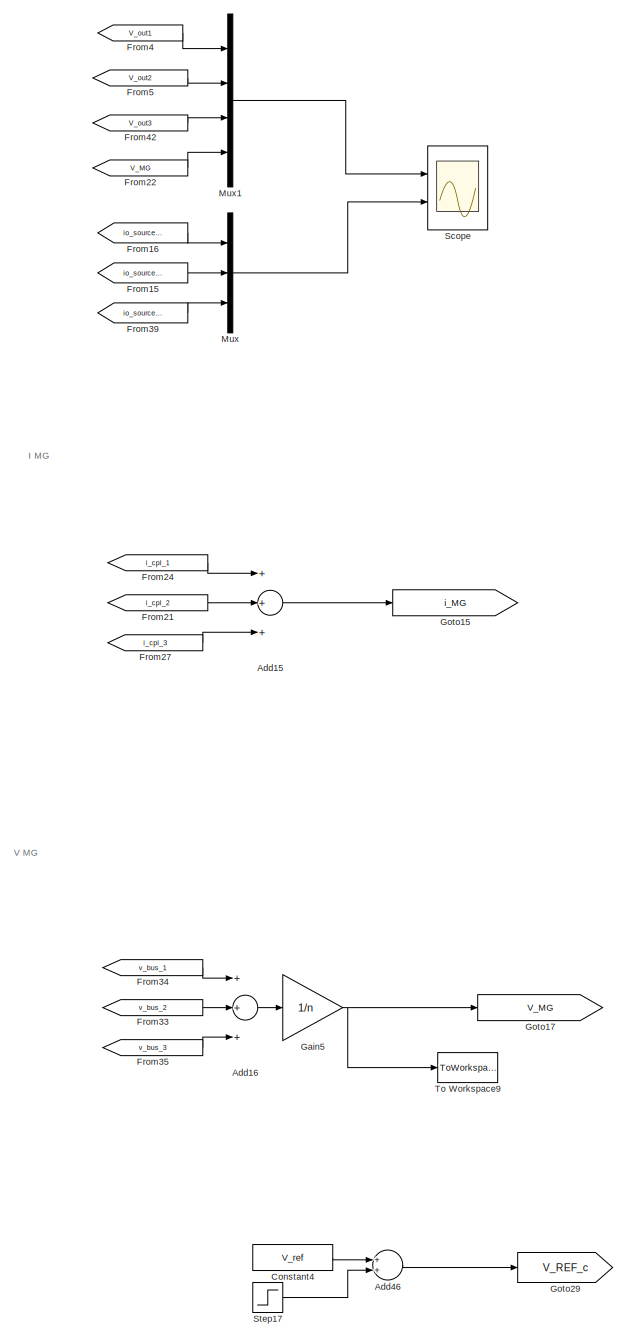
[diagram: root canvas - part 1/14, top right region]
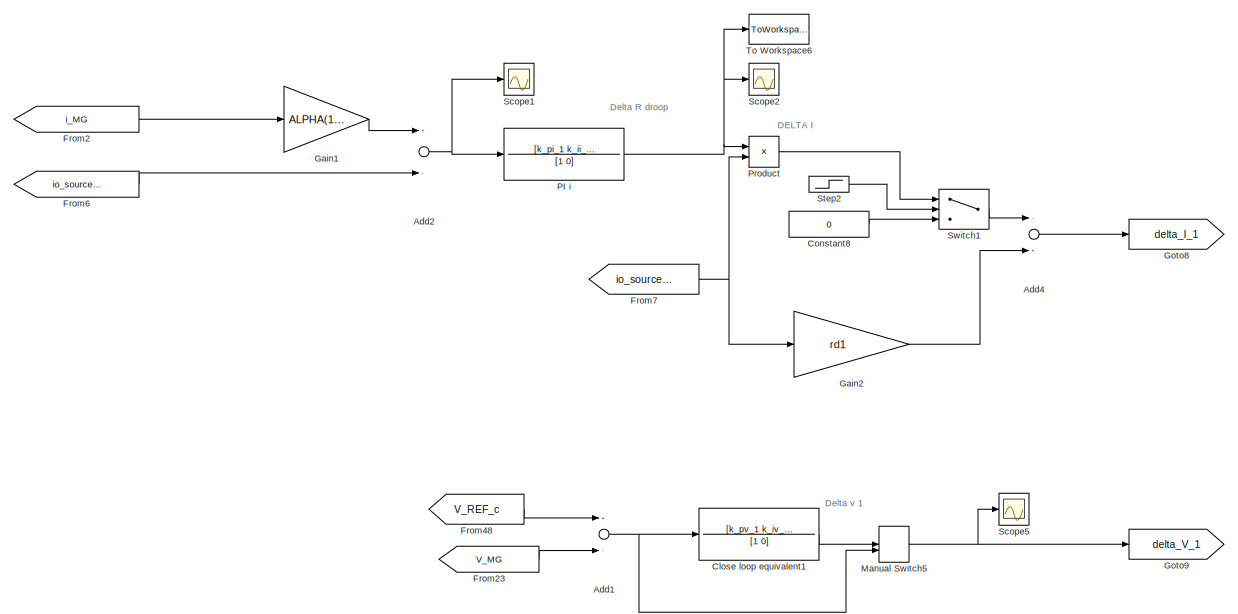
[diagram: root canvas - part 2/14, top left region]
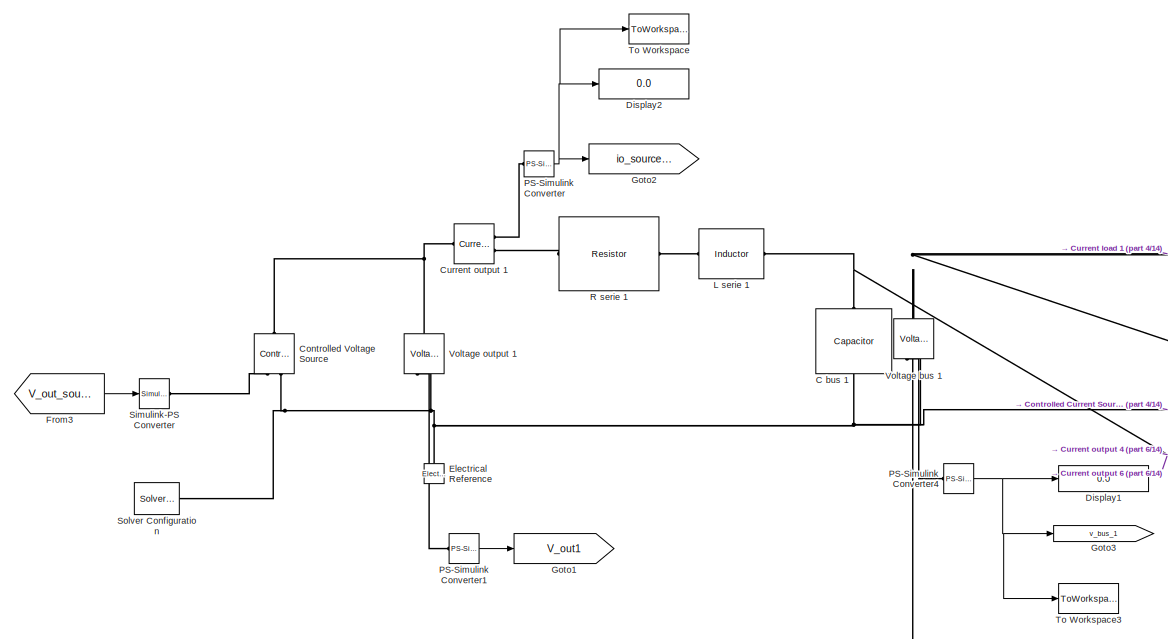
[diagram: root canvas - part 3/14, top center region]
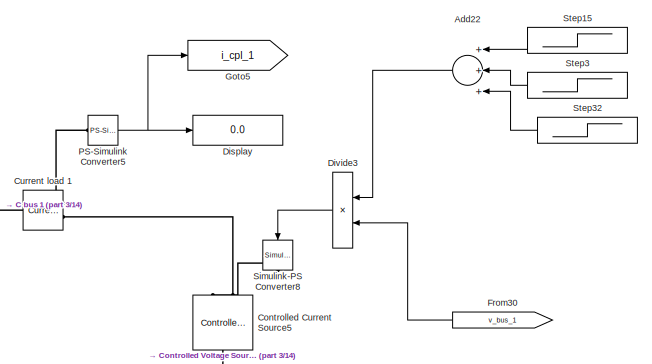
[diagram: root canvas - part 4/14, top right region]
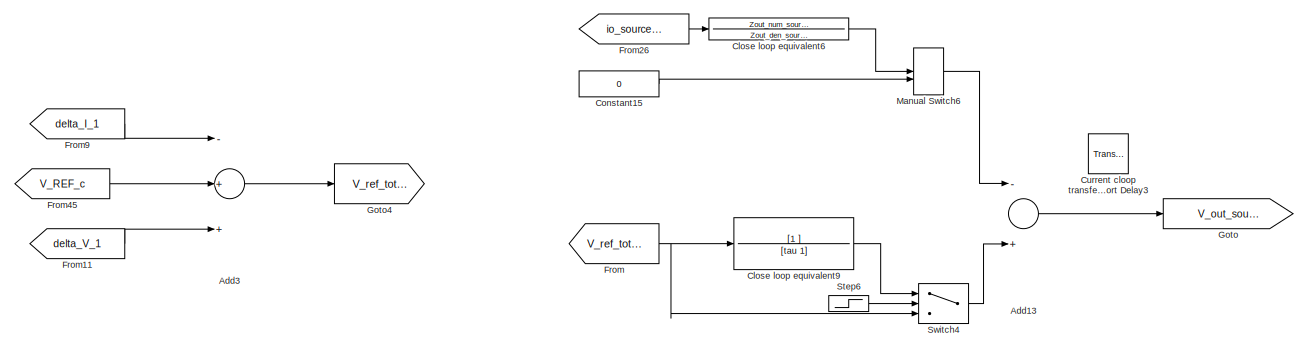
[diagram: root canvas - part 5/14, top center region]
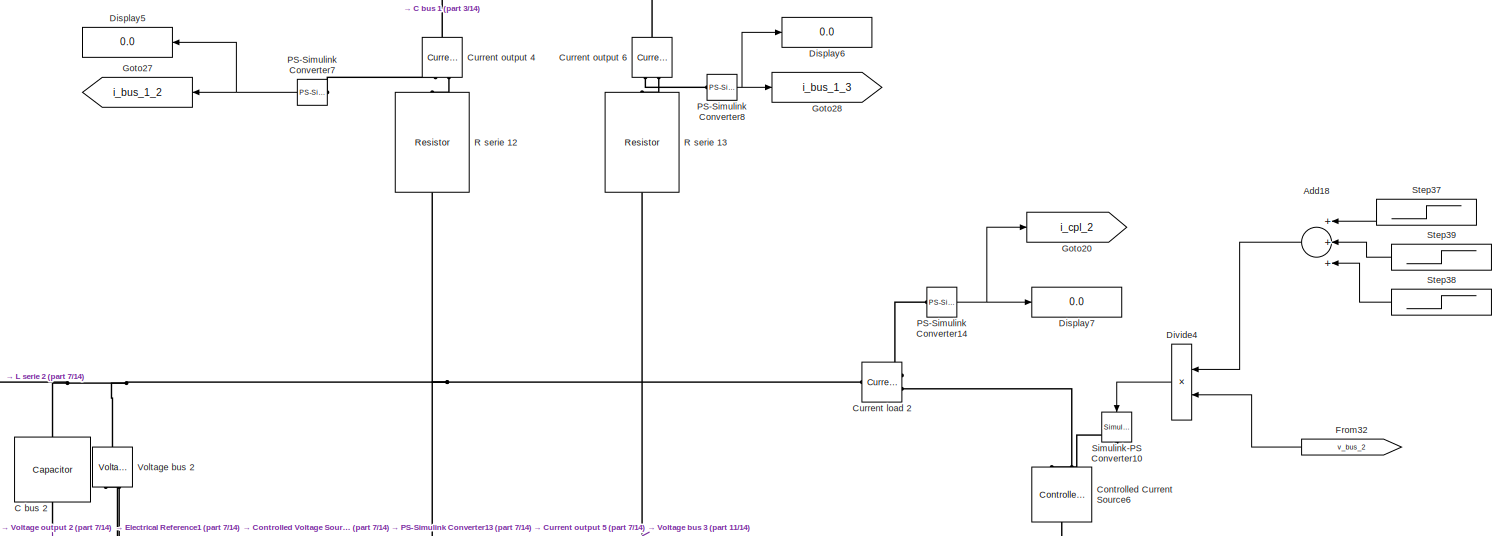
[diagram: root canvas - part 6/14, middle right region]
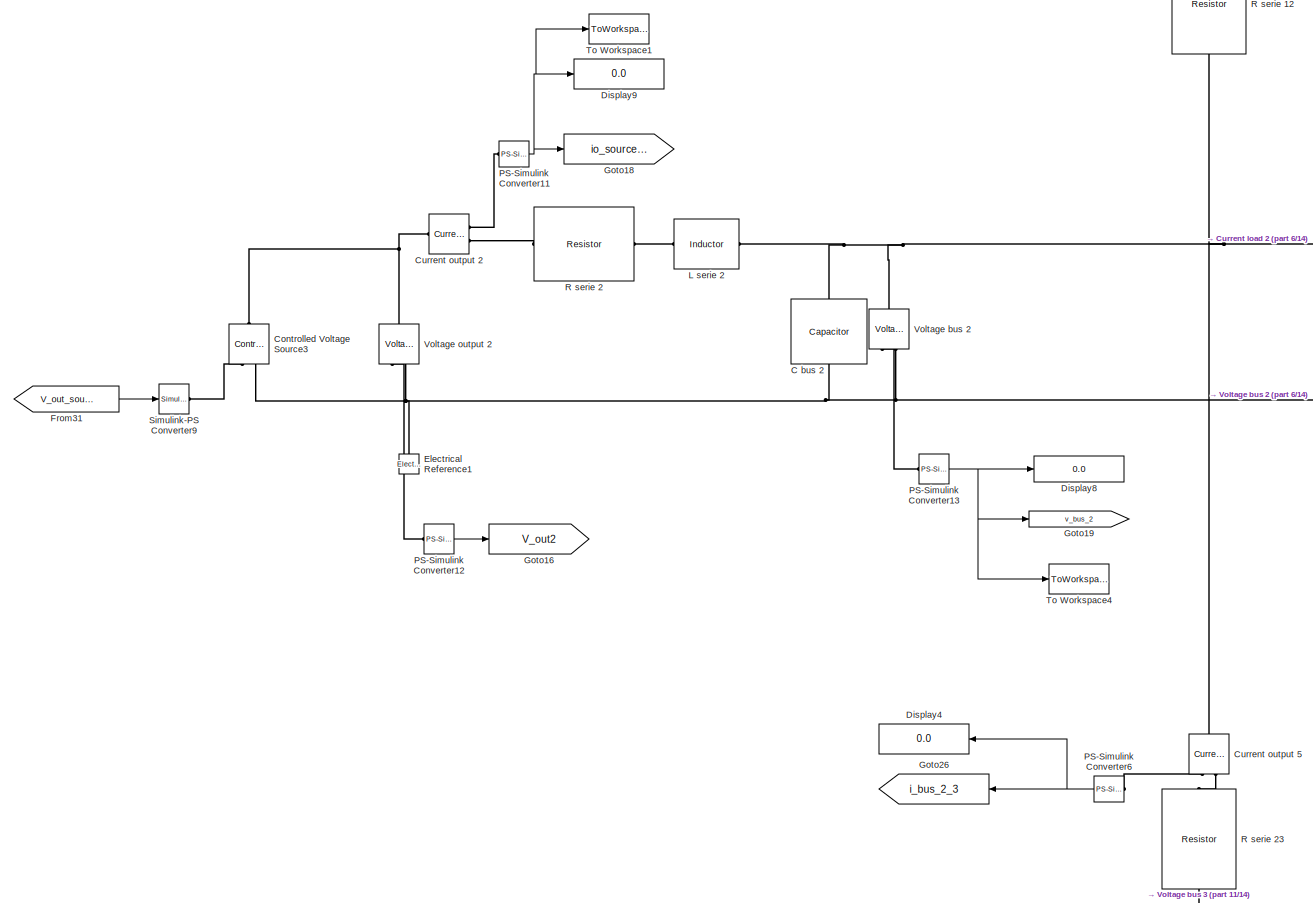
[diagram: root canvas - part 7/14, central region]
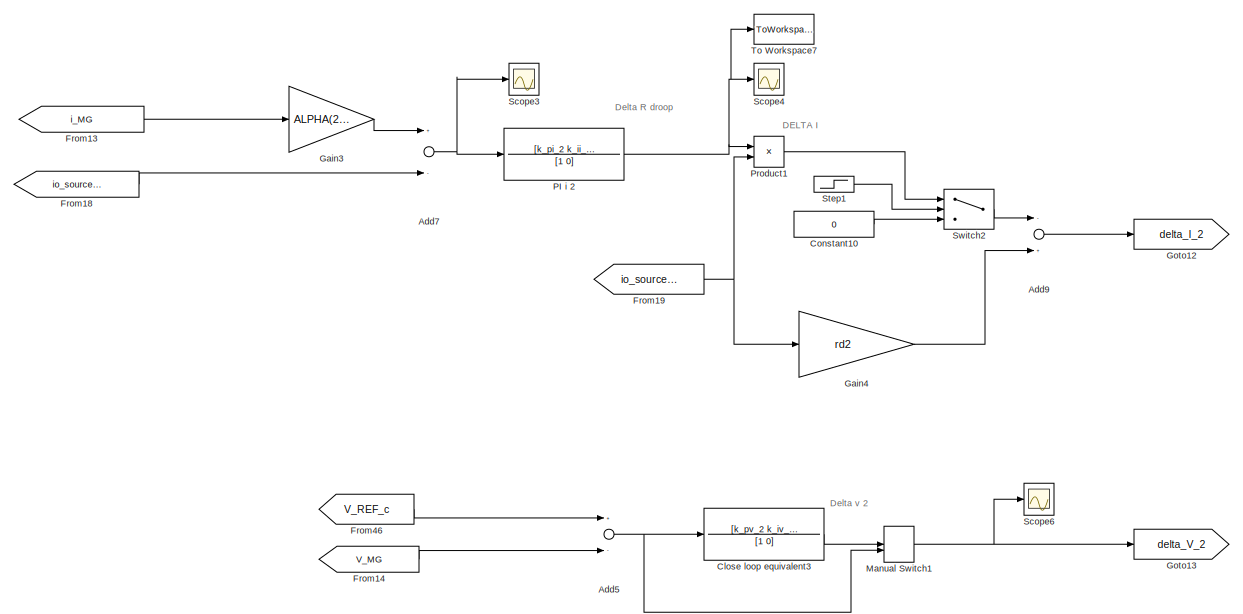
[diagram: root canvas - part 8/14, middle left region]
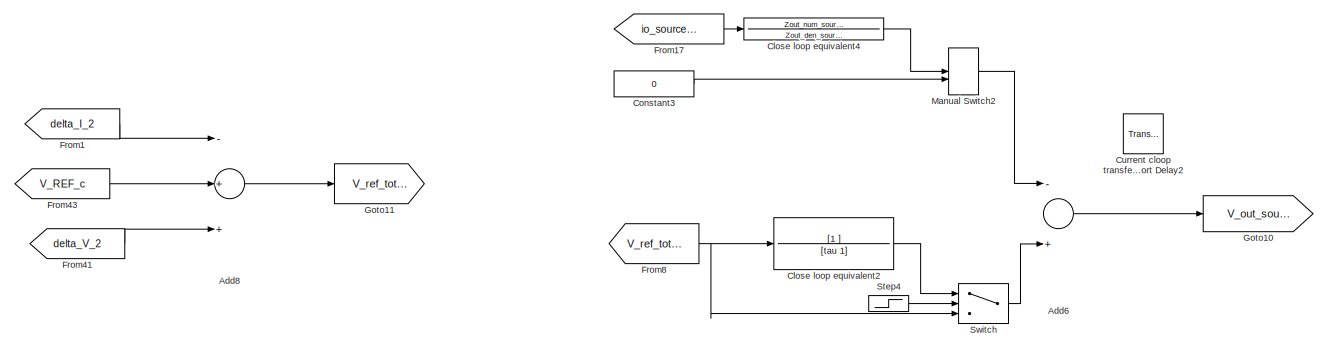
[diagram: root canvas - part 9/14, central region]
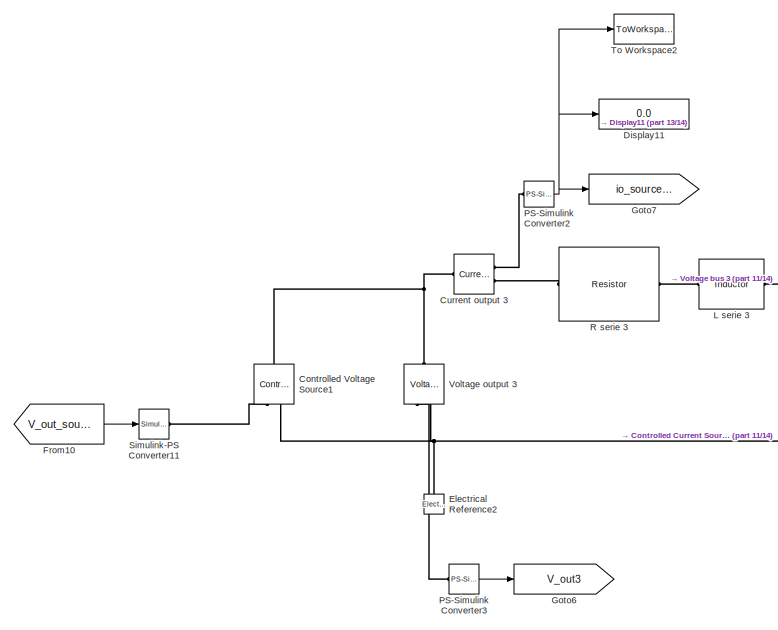
[diagram: root canvas - part 10/14, bottom center region]
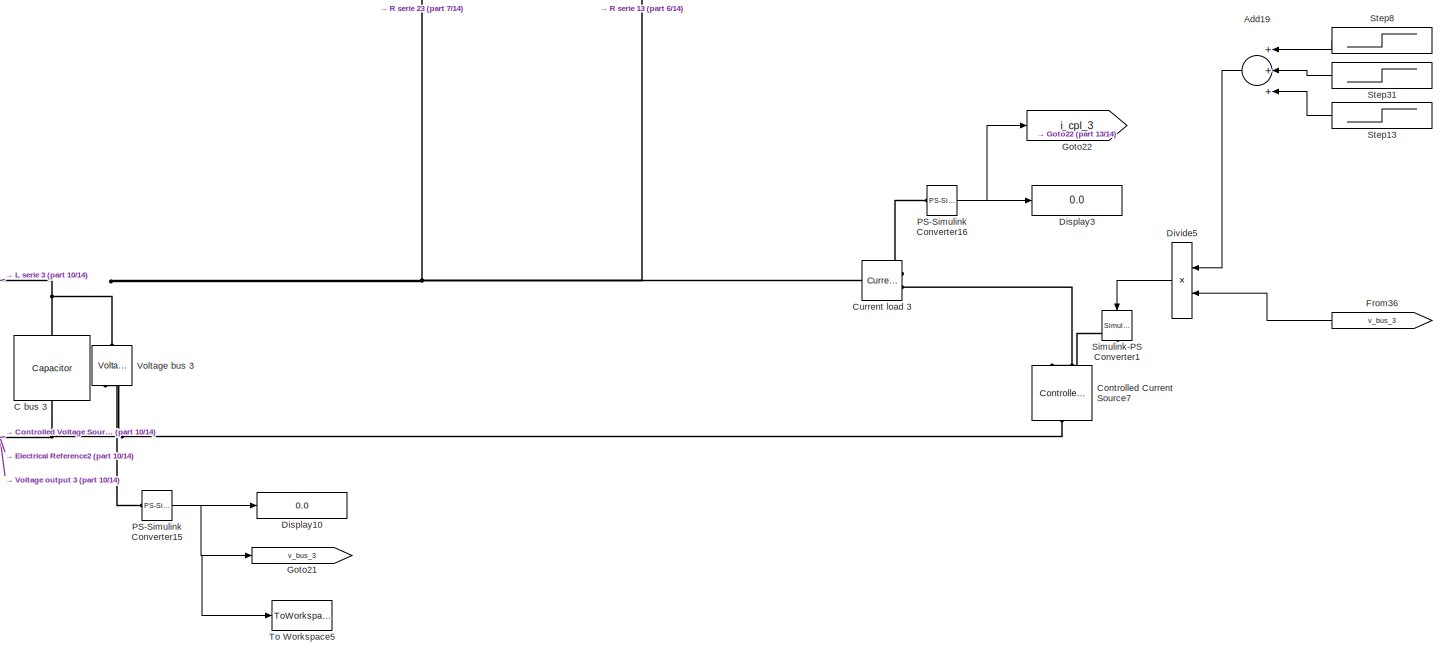
[diagram: root canvas - part 11/14, bottom right region]
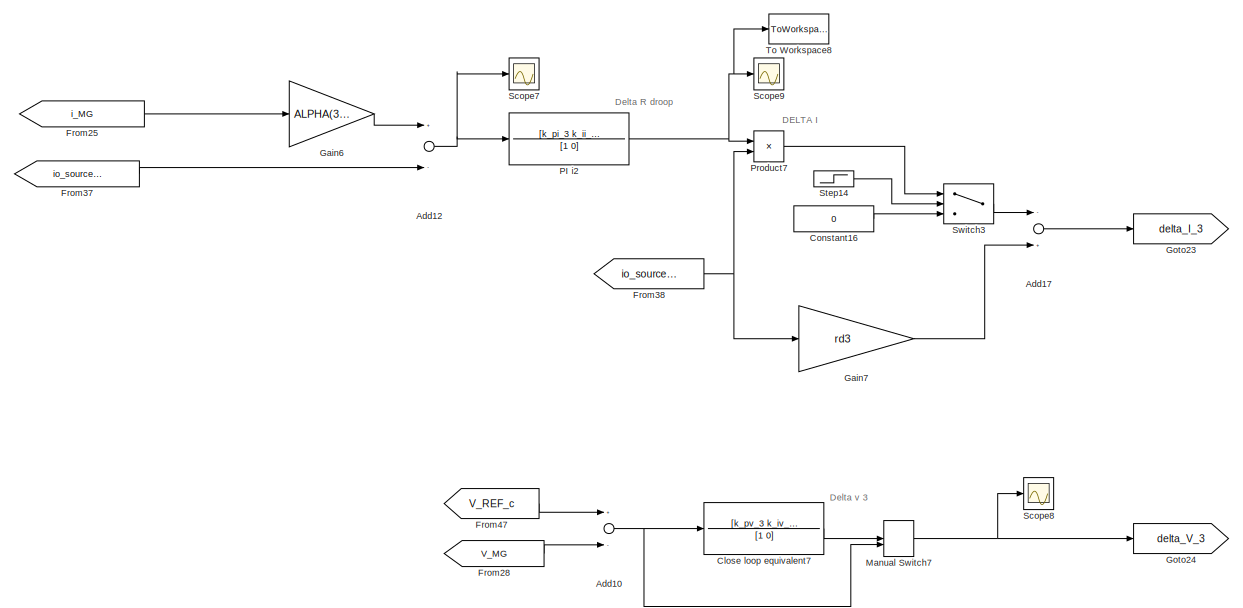
[diagram: root canvas - part 12/14, bottom left region]
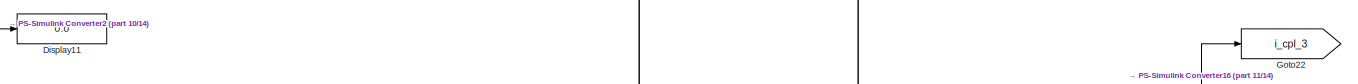
[diagram: root canvas - part 13/14, bottom right region]
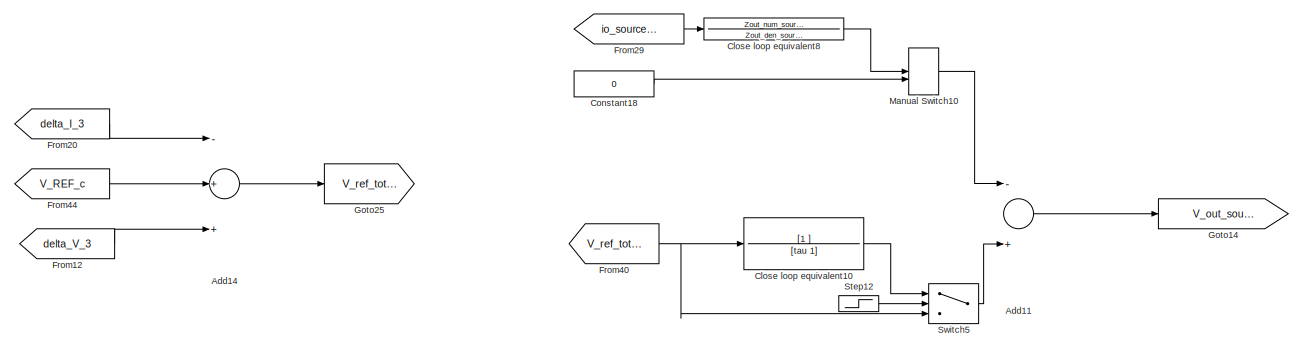
[diagram: root canvas - part 14/14, bottom center region]
MODEL slx_5e111f39d4e7
KIND model
CONFIG AbsTol = auto
CONFIG EnableMultiTasking = off
CONFIG FixedStep = 0.1e-3
CONFIG MaxStep = auto
CONFIG MinStep = auto
CONFIG RelTol = 1e-3
CONFIG SampleTimeConstraint = Unconstrained
CONFIG Solver = VariableStepAuto
CONFIG SolverName = VariableStepAuto
CONFIG StartTime = 0.0
CONFIG StopTime = 4.2
BLOCK [Sum] Add1
  InputSameDT = off
  Inputs = +-
  OutDataTypeStr = Inherit: Inherit via internal rule
  Ports = [2, 1]
  SaturateOnIntegerOverflow = off
BLOCK [Sum] Add10
  InputSameDT = off
  Inputs = +-
  OutDataTypeStr = Inherit: Inherit via internal rule
  Ports = [2, 1]
  SaturateOnIntegerOverflow = off
BLOCK [Sum] Add11
  InputSameDT = off
  Inputs = -+
  OutDataTypeStr = Inherit: Inherit via internal rule
  Ports = [2, 1]
  SaturateOnIntegerOverflow = off
BLOCK [Sum] Add12
  InputSameDT = off
  Inputs = +-
  OutDataTypeStr = Inherit: Inherit via internal rule
  Ports = [2, 1]
  SaturateOnIntegerOverflow = off
BLOCK [Sum] Add13
  InputSameDT = off
  Inputs = -+
  OutDataTypeStr = Inherit: Inherit via internal rule
  Ports = [2, 1]
  SaturateOnIntegerOverflow = off
BLOCK [Sum] Add14
  InputSameDT = off
  Inputs = -++
  OutDataTypeStr = Inherit: Inherit via internal rule
  Ports = [3, 1]
  SaturateOnIntegerOverflow = off
BLOCK [Sum] Add15
  InputSameDT = off
  Inputs = +++
  OutDataTypeStr = Inherit: Inherit via internal rule
  Ports = [3, 1]
  SaturateOnIntegerOverflow = off
BLOCK [Sum] Add16
  InputSameDT = off
  Inputs = +++
  OutDataTypeStr = Inherit: Inherit via internal rule
  Ports = [3, 1]
  SaturateOnIntegerOverflow = off
BLOCK [Sum] Add17
  InputSameDT = off
  Inputs = -+
  OutDataTypeStr = Inherit: Inherit via internal rule
  Ports = [2, 1]
  SaturateOnIntegerOverflow = off
BLOCK [Sum] Add18
  InputSameDT = off
  Inputs = +++
  OutDataTypeStr = Inherit: Inherit via internal rule
  Ports = [3, 1]
  SaturateOnIntegerOverflow = off
BLOCK [Sum] Add19
  InputSameDT = off
  Inputs = +++
  OutDataTypeStr = Inherit: Inherit via internal rule
  Ports = [3, 1]
  SaturateOnIntegerOverflow = off
BLOCK [Sum] Add2
  InputSameDT = off
  Inputs = +-
  OutDataTypeStr = Inherit: Inherit via internal rule
  Ports = [2, 1]
  SaturateOnIntegerOverflow = off
BLOCK [Sum] Add22
  InputSameDT = off
  Inputs = +++
  OutDataTypeStr = Inherit: Inherit via internal rule
  Ports = [3, 1]
  SaturateOnIntegerOverflow = off
BLOCK [Sum] Add3
  InputSameDT = off
  Inputs = -++
  OutDataTypeStr = Inherit: Inherit via internal rule
  Ports = [3, 1]
  SaturateOnIntegerOverflow = off
BLOCK [Sum] Add4
  InputSameDT = off
  Inputs = -+
  OutDataTypeStr = Inherit: Inherit via internal rule
  Ports = [2, 1]
  SaturateOnIntegerOverflow = off
BLOCK [Sum] Add46
  InputSameDT = off
  OutDataTypeStr = Inherit: Inherit via internal rule
  Ports = [2, 1]
  SaturateOnIntegerOverflow = off
BLOCK [Sum] Add5
  InputSameDT = off
  Inputs = +-
  OutDataTypeStr = Inherit: Inherit via internal rule
  Ports = [2, 1]
  SaturateOnIntegerOverflow = off
BLOCK [Sum] Add6
  InputSameDT = off
  Inputs = -+
  OutDataTypeStr = Inherit: Inherit via internal rule
  Ports = [2, 1]
  SaturateOnIntegerOverflow = off
BLOCK [Sum] Add7
  InputSameDT = off
  Inputs = +-
  OutDataTypeStr = Inherit: Inherit via internal rule
  Ports = [2, 1]
  SaturateOnIntegerOverflow = off
BLOCK [Sum] Add8
  InputSameDT = off
  Inputs = -++
  OutDataTypeStr = Inherit: Inherit via internal rule
  Ports = [3, 1]
  SaturateOnIntegerOverflow = off
BLOCK [Sum] Add9
  InputSameDT = off
  Inputs = -+
  OutDataTypeStr = Inherit: Inherit via internal rule
  Ports = [2, 1]
  SaturateOnIntegerOverflow = off
BLOCK [Reference] C bus 1  REF=elec_lib/Passive Devices/Capacitor
  Ports = [0, 0, 0, 0, 0, 1, 1]
  SourceBlock = elec_lib/Passive Devices/Capacitor
  SourceProductBaseCode = SN
  SourceProductName = Simscape Electronics
  SourceType = Capacitor
BLOCK [Reference] C bus 2  REF=elec_lib/Passive Devices/Capacitor
  Ports = [0, 0, 0, 0, 0, 1, 1]
  SourceBlock = elec_lib/Passive Devices/Capacitor
  SourceProductBaseCode = SN
  SourceProductName = Simscape Electronics
  SourceType = Capacitor
BLOCK [Reference] C bus 3  REF=elec_lib/Passive Devices/Capacitor
  Ports = [0, 0, 0, 0, 0, 1, 1]
  SourceBlock = elec_lib/Passive Devices/Capacitor
  SourceProductBaseCode = SN
  SourceProductName = Simscape Electronics
  SourceType = Capacitor
BLOCK [TransferFcn] Close loop equivalent1
  Denominator = [1 0]
  Numerator = [k_pv_1 k_iv_1 ]
BLOCK [TransferFcn] Close loop equivalent10
  Denominator = [tau 1]
  Numerator = [1 ]
BLOCK [TransferFcn] Close loop equivalent2
  Denominator = [tau 1]
  Numerator = [1 ]
BLOCK [TransferFcn] Close loop equivalent3
  Denominator = [1 0]
  Numerator = [k_pv_2 k_iv_2 ]
BLOCK [TransferFcn] Close loop equivalent4
  Commented = on
  Denominator = Zout_den_source
  Numerator = Zout_num_source
BLOCK [TransferFcn] Close loop equivalent6
  Commented = on
  Denominator = Zout_den_source
  Numerator = Zout_num_source
BLOCK [TransferFcn] Close loop equivalent7
  Denominator = [1 0]
  Numerator = [k_pv_3 k_iv_3 ]
BLOCK [TransferFcn] Close loop equivalent8
  Commented = on
  Denominator = Zout_den_source
  Numerator = Zout_num_source
BLOCK [TransferFcn] Close loop equivalent9
  Denominator = [tau 1]
  Numerator = [1 ]
BLOCK [Constant] Constant10
  Value = 0
BLOCK [Constant] Constant15
  Value = 0
BLOCK [Constant] Constant16
  Value = 0
BLOCK [Constant] Constant18
  Value = 0
BLOCK [Constant] Constant3
  Value = 0
BLOCK [Constant] Constant4
  Value = V_ref
BLOCK [Constant] Constant8
  Value = 0
BLOCK [Reference] Controlled Current Source5  REF=fl_lib/Electrical/Electrical Sources/Controlled Current
Source
  Ports = [0, 0, 0, 0, 0, 1, 2]
  SourceBlock = fl_lib/Electrical/Electrical Sources/Controlled Current\nSource
  SourceProductBaseCode = SS
  SourceProductName = Simscape
  SourceType = Controlled Current\nSource
BLOCK [Reference] Controlled Current Source6  REF=fl_lib/Electrical/Electrical Sources/Controlled Current
Source
  Ports = [0, 0, 0, 0, 0, 1, 2]
  SourceBlock = fl_lib/Electrical/Electrical Sources/Controlled Current\nSource
  SourceProductBaseCode = SS
  SourceProductName = Simscape
  SourceType = Controlled Current\nSource
BLOCK [Reference] Controlled Current Source7  REF=fl_lib/Electrical/Electrical Sources/Controlled Current
Source
  Ports = [0, 0, 0, 0, 0, 1, 2]
  SourceBlock = fl_lib/Electrical/Electrical Sources/Controlled Current\nSource
  SourceProductBaseCode = SS
  SourceProductName = Simscape
  SourceType = Controlled Current\nSource
BLOCK [Reference] Controlled Voltage Source  REF=fl_lib/Electrical/Electrical Sources/Controlled Voltage
Source
  Ports = [0, 0, 0, 0, 0, 1, 2]
  SourceBlock = fl_lib/Electrical/Electrical Sources/Controlled Voltage\nSource
  SourceProductBaseCode = SS
  SourceProductName = Simscape
  SourceType = Controlled Voltage\nSource
BLOCK [Reference] Controlled Voltage Source1  REF=fl_lib/Electrical/Electrical Sources/Controlled Voltage
Source
  Ports = [0, 0, 0, 0, 0, 1, 2]
  SourceBlock = fl_lib/Electrical/Electrical Sources/Controlled Voltage\nSource
  SourceProductBaseCode = SS
  SourceProductName = Simscape
  SourceType = Controlled Voltage\nSource
BLOCK [Reference] Controlled Voltage Source3  REF=fl_lib/Electrical/Electrical Sources/Controlled Voltage
Source
  Ports = [0, 0, 0, 0, 0, 1, 2]
  SourceBlock = fl_lib/Electrical/Electrical Sources/Controlled Voltage\nSource
  SourceProductBaseCode = SS
  SourceProductName = Simscape
  SourceType = Controlled Voltage\nSource
BLOCK [TransportDelay] Current cloop transfer- Transport Delay2
  Commented = on
  DelayTime = 0.1e-3
  Ports = [1, 1]
BLOCK [TransportDelay] Current cloop transfer- Transport Delay3
  Commented = on
  DelayTime = 0.1e-3
  Ports = [1, 1]
BLOCK [Reference] Current load 1  REF=fl_lib/Electrical/Electrical Sensors/Current Sensor
  Ports = [0, 0, 0, 0, 0, 1, 2]
  SourceBlock = fl_lib/Electrical/Electrical Sensors/Current Sensor
  SourceProductBaseCode = SS
  SourceProductName = Simscape
  SourceType = Current Sensor
BLOCK [Reference] Current load 2  REF=fl_lib/Electrical/Electrical Sensors/Current Sensor
  Ports = [0, 0, 0, 0, 0, 1, 2]
  SourceBlock = fl_lib/Electrical/Electrical Sensors/Current Sensor
  SourceProductBaseCode = SS
  SourceProductName = Simscape
  SourceType = Current Sensor
BLOCK [Reference] Current load 3  REF=fl_lib/Electrical/Electrical Sensors/Current Sensor
  Ports = [0, 0, 0, 0, 0, 1, 2]
  SourceBlock = fl_lib/Electrical/Electrical Sensors/Current Sensor
  SourceProductBaseCode = SS
  SourceProductName = Simscape
  SourceType = Current Sensor
BLOCK [Reference] Current output 1  REF=fl_lib/Electrical/Electrical Sensors/Current Sensor
  Ports = [0, 0, 0, 0, 0, 1, 2]
  SourceBlock = fl_lib/Electrical/Electrical Sensors/Current Sensor
  SourceProductBaseCode = SS
  SourceProductName = Simscape
  SourceType = Current Sensor
BLOCK [Reference] Current output 2  REF=fl_lib/Electrical/Electrical Sensors/Current Sensor
  Ports = [0, 0, 0, 0, 0, 1, 2]
  SourceBlock = fl_lib/Electrical/Electrical Sensors/Current Sensor
  SourceProductBaseCode = SS
  SourceProductName = Simscape
  SourceType = Current Sensor
BLOCK [Reference] Current output 3  REF=fl_lib/Electrical/Electrical Sensors/Current Sensor
  Ports = [0, 0, 0, 0, 0, 1, 2]
  SourceBlock = fl_lib/Electrical/Electrical Sensors/Current Sensor
  SourceProductBaseCode = SS
  SourceProductName = Simscape
  SourceType = Current Sensor
BLOCK [Reference] Current output 4  REF=fl_lib/Electrical/Electrical Sensors/Current Sensor
  Ports = [0, 0, 0, 0, 0, 1, 2]
  SourceBlock = fl_lib/Electrical/Electrical Sensors/Current Sensor
  SourceProductBaseCode = SS
  SourceProductName = Simscape
  SourceType = Current Sensor
BLOCK [Reference] Current output 5  REF=fl_lib/Electrical/Electrical Sensors/Current Sensor
  Ports = [0, 0, 0, 0, 0, 1, 2]
  SourceBlock = fl_lib/Electrical/Electrical Sensors/Current Sensor
  SourceProductBaseCode = SS
  SourceProductName = Simscape
  SourceType = Current Sensor
BLOCK [Reference] Current output 6  REF=fl_lib/Electrical/Electrical Sensors/Current Sensor
  Ports = [0, 0, 0, 0, 0, 1, 2]
  SourceBlock = fl_lib/Electrical/Electrical Sensors/Current Sensor
  SourceProductBaseCode = SS
  SourceProductName = Simscape
  SourceType = Current Sensor
BLOCK [Display] Display
  Decimation = 1
  Ports = [1]
BLOCK [Display] Display1
  Decimation = 1
  Ports = [1]
BLOCK [Display] Display10
  Decimation = 1
  Ports = [1]
BLOCK [Display] Display11
  Decimation = 1
  Ports = [1]
BLOCK [Display] Display2
  Decimation = 1
  Ports = [1]
BLOCK [Display] Display3
  Decimation = 1
  Ports = [1]
BLOCK [Display] Display4
  Decimation = 1
  Ports = [1]
BLOCK [Display] Display5
  Decimation = 1
  Ports = [1]
BLOCK [Display] Display6
  Decimation = 1
  Ports = [1]
BLOCK [Display] Display7
  Decimation = 1
  Ports = [1]
BLOCK [Display] Display8
  Decimation = 1
  Ports = [1]
BLOCK [Display] Display9
  Decimation = 1
  Ports = [1]
BLOCK [Product] Divide3
  InputSameDT = off
  Inputs = */
  OutDataTypeStr = Inherit: Inherit via internal rule
  Ports = [2, 1]
  RndMeth = Floor
  SaturateOnIntegerOverflow = off
BLOCK [Product] Divide4
  InputSameDT = off
  Inputs = */
  OutDataTypeStr = Inherit: Inherit via internal rule
  Ports = [2, 1]
  RndMeth = Floor
  SaturateOnIntegerOverflow = off
BLOCK [Product] Divide5
  InputSameDT = off
  Inputs = */
  OutDataTypeStr = Inherit: Inherit via internal rule
  Ports = [2, 1]
  RndMeth = Floor
  SaturateOnIntegerOverflow = off
BLOCK [Reference] Electrical Reference  REF=fl_lib/Electrical/Electrical Elements/Electrical Reference
  Ports = [0, 0, 0, 0, 0, 1]
  SourceBlock = fl_lib/Electrical/Electrical Elements/Electrical Reference
  SourceProductBaseCode = SS
  SourceProductName = Simscape
  SourceType = Electrical Reference
BLOCK [Reference] Electrical Reference1  REF=fl_lib/Electrical/Electrical Elements/Electrical Reference
  Ports = [0, 0, 0, 0, 0, 1]
  SourceBlock = fl_lib/Electrical/Electrical Elements/Electrical Reference
  SourceProductBaseCode = SS
  SourceProductName = Simscape
  SourceType = Electrical Reference
BLOCK [Reference] Electrical Reference2  REF=fl_lib/Electrical/Electrical Elements/Electrical Reference
  Ports = [0, 0, 0, 0, 0, 1]
  SourceBlock = fl_lib/Electrical/Electrical Elements/Electrical Reference
  SourceProductBaseCode = SS
  SourceProductName = Simscape
  SourceType = Electrical Reference
BLOCK [From] From
  GotoTag = V_ref_tot_1
BLOCK [From] From1
  GotoTag = delta_I_2
BLOCK [From] From10
  GotoTag = V_out_source_3
BLOCK [From] From11
  GotoTag = delta_V_1
BLOCK [From] From12
  GotoTag = delta_V_3
BLOCK [From] From13
  GotoTag = i_MG
BLOCK [From] From14
  GotoTag = V_MG
BLOCK [From] From15
  GotoTag = io_source_2
BLOCK [From] From16
  GotoTag = io_source_1
BLOCK [From] From17
  Commented = on
  GotoTag = io_source_2
BLOCK [From] From18
  GotoTag = io_source_2
BLOCK [From] From19
  GotoTag = io_source_2
BLOCK [From] From2
  GotoTag = i_MG
BLOCK [From] From20
  GotoTag = delta_I_3
BLOCK [From] From21
  GotoTag = i_cpl_2
BLOCK [From] From22
  GotoTag = V_MG
BLOCK [From] From23
  GotoTag = V_MG
BLOCK [From] From24
  GotoTag = i_cpl_1
BLOCK [From] From25
  GotoTag = i_MG
BLOCK [From] From26
  Commented = on
  GotoTag = io_source_1
BLOCK [From] From27
  GotoTag = i_cpl_3
BLOCK [From] From28
  GotoTag = V_MG
BLOCK [From] From29
  Commented = on
  GotoTag = io_source_3
BLOCK [From] From3
  GotoTag = V_out_source_1
BLOCK [From] From30
  GotoTag = v_bus_1
BLOCK [From] From31
  GotoTag = V_out_source_2
BLOCK [From] From32
  GotoTag = v_bus_2
BLOCK [From] From33
  GotoTag = v_bus_2
BLOCK [From] From34
  GotoTag = v_bus_1
BLOCK [From] From35
  GotoTag = v_bus_3
BLOCK [From] From36
  GotoTag = v_bus_3
BLOCK [From] From37
  GotoTag = io_source_3
BLOCK [From] From38
  GotoTag = io_source_3
BLOCK [From] From39
  GotoTag = io_source_3
BLOCK [From] From4
  GotoTag = V_out1
BLOCK [From] From40
  GotoTag = V_ref_tot_3
BLOCK [From] From41
  GotoTag = delta_V_2
BLOCK [From] From42
  GotoTag = V_out3
BLOCK [From] From43
  GotoTag = V_REF_c
BLOCK [From] From44
  GotoTag = V_REF_c
BLOCK [From] From45
  GotoTag = V_REF_c
BLOCK [From] From46
  GotoTag = V_REF_c
BLOCK [From] From47
  GotoTag = V_REF_c
BLOCK [From] From48
  GotoTag = V_REF_c
BLOCK [From] From5
  GotoTag = V_out2
BLOCK [From] From6
  GotoTag = io_source_1
BLOCK [From] From7
  GotoTag = io_source_1
BLOCK [From] From8
  GotoTag = V_ref_tot_2
BLOCK [From] From9
  GotoTag = delta_I_1
BLOCK [Gain] Gain1
  Gain = ALPHA(1,1)
  OutDataTypeStr = Inherit: Inherit via internal rule
  ParamDataTypeStr = Inherit: Inherit via internal rule
  SaturateOnIntegerOverflow = off
BLOCK [Gain] Gain2
  Gain = rd1
  OutDataTypeStr = Inherit: Inherit via internal rule
  ParamDataTypeStr = Inherit: Inherit via internal rule
  SaturateOnIntegerOverflow = off
BLOCK [Gain] Gain3
  Gain = ALPHA(2,2)
  OutDataTypeStr = Inherit: Inherit via internal rule
  ParamDataTypeStr = Inherit: Inherit via internal rule
  SaturateOnIntegerOverflow = off
BLOCK [Gain] Gain4
  Gain = rd2
  OutDataTypeStr = Inherit: Inherit via internal rule
  ParamDataTypeStr = Inherit: Inherit via internal rule
  SaturateOnIntegerOverflow = off
BLOCK [Gain] Gain5
  Gain = 1/n
  OutDataTypeStr = Inherit: Inherit via internal rule
  ParamDataTypeStr = Inherit: Inherit via internal rule
  SaturateOnIntegerOverflow = off
BLOCK [Gain] Gain6
  Gain = ALPHA(3,3)
  OutDataTypeStr = Inherit: Inherit via internal rule
  ParamDataTypeStr = Inherit: Inherit via internal rule
  SaturateOnIntegerOverflow = off
BLOCK [Gain] Gain7
  Gain = rd3
  OutDataTypeStr = Inherit: Inherit via internal rule
  ParamDataTypeStr = Inherit: Inherit via internal rule
  SaturateOnIntegerOverflow = off
BLOCK [Goto] Goto
  GotoTag = V_out_source_1
BLOCK [Goto] Goto1
  GotoTag = V_out1
BLOCK [Goto] Goto10
  GotoTag = V_out_source_2
BLOCK [Goto] Goto11
  GotoTag = V_ref_tot_2
BLOCK [Goto] Goto12
  GotoTag = delta_I_2
BLOCK [Goto] Goto13
  GotoTag = delta_V_2
BLOCK [Goto] Goto14
  GotoTag = V_out_source_3
BLOCK [Goto] Goto15
  GotoTag = i_MG
BLOCK [Goto] Goto16
  GotoTag = V_out2
BLOCK [Goto] Goto17
  GotoTag = V_MG
BLOCK [Goto] Goto18
  GotoTag = io_source_2
BLOCK [Goto] Goto19
  GotoTag = v_bus_2
BLOCK [Goto] Goto2
  GotoTag = io_source_1
BLOCK [Goto] Goto20
  GotoTag = i_cpl_2
BLOCK [Goto] Goto21
  GotoTag = v_bus_3
BLOCK [Goto] Goto22
  GotoTag = i_cpl_3
BLOCK [Goto] Goto23
  GotoTag = delta_I_3
BLOCK [Goto] Goto24
  GotoTag = delta_V_3
BLOCK [Goto] Goto25
  GotoTag = V_ref_tot_3
BLOCK [Goto] Goto26
  GotoTag = i_bus_2_3
BLOCK [Goto] Goto27
  GotoTag = i_bus_1_2
BLOCK [Goto] Goto28
  GotoTag = i_bus_1_3
BLOCK [Goto] Goto29
  GotoTag = V_REF_c
BLOCK [Goto] Goto3
  GotoTag = v_bus_1
BLOCK [Goto] Goto4
  GotoTag = V_ref_tot_1
BLOCK [Goto] Goto5
  GotoTag = i_cpl_1
BLOCK [Goto] Goto6
  GotoTag = V_out3
BLOCK [Goto] Goto7
  GotoTag = io_source_3
BLOCK [Goto] Goto8
  GotoTag = delta_I_1
BLOCK [Goto] Goto9
  GotoTag = delta_V_1
BLOCK [Reference] L serie 1  REF=elec_lib/Passive Devices/Inductor
  Ports = [0, 0, 0, 0, 0, 1, 1]
  SourceBlock = elec_lib/Passive Devices/Inductor
  SourceProductBaseCode = SN
  SourceProductName = Simscape Electronics
  SourceType = Inductor
BLOCK [Reference] L serie 2  REF=elec_lib/Passive Devices/Inductor
  Ports = [0, 0, 0, 0, 0, 1, 1]
  SourceBlock = elec_lib/Passive Devices/Inductor
  SourceProductBaseCode = SN
  SourceProductName = Simscape Electronics
  SourceType = Inductor
BLOCK [Reference] L serie 3  REF=elec_lib/Passive Devices/Inductor
  Ports = [0, 0, 0, 0, 0, 1, 1]
  SourceBlock = elec_lib/Passive Devices/Inductor
  SourceProductBaseCode = SN
  SourceProductName = Simscape Electronics
  SourceType = Inductor
BLOCK [ManualSwitch] Manual Switch1
BLOCK [ManualSwitch] Manual Switch10
  CurrentSetting = 0
BLOCK [ManualSwitch] Manual Switch2
  CurrentSetting = 0
BLOCK [ManualSwitch] Manual Switch5
BLOCK [ManualSwitch] Manual Switch6
  CurrentSetting = 0
BLOCK [ManualSwitch] Manual Switch7
BLOCK [Mux] Mux
  DisplayOption = bar
  Inputs = 3
  Ports = [3, 1]
BLOCK [Mux] Mux1
  DisplayOption = bar
  Ports = [4, 1]
BLOCK [TransferFcn] PI i
  Denominator = [1 0]
  Numerator = [k_pi_1 k_ii_1 ]
BLOCK [TransferFcn] PI i 2
  Denominator = [1 0]
  Numerator = [k_pi_2 k_ii_2 ]
BLOCK [TransferFcn] PI i2
  Denominator = [1 0]
  Numerator = [k_pi_3 k_ii_3 ]
BLOCK [Reference] PS-Simulink Converter  REF=nesl_utility/PS-Simulink
Converter
  Ports = [0, 1, 0, 0, 0, 1]
  SourceBlock = nesl_utility/PS-Simulink\nConverter
  SourceProductBaseCode = SS
  SourceProductName = Simscape
  SourceType = PS-Simulink\nConverter
BLOCK [Reference] PS-Simulink Converter1  REF=nesl_utility/PS-Simulink
Converter
  Ports = [0, 1, 0, 0, 0, 1]
  SourceBlock = nesl_utility/PS-Simulink\nConverter
  SourceProductBaseCode = SS
  SourceProductName = Simscape
  SourceType = PS-Simulink\nConverter
BLOCK [Reference] PS-Simulink Converter11  REF=nesl_utility/PS-Simulink
Converter
  Ports = [0, 1, 0, 0, 0, 1]
  SourceBlock = nesl_utility/PS-Simulink\nConverter
  SourceProductBaseCode = SS
  SourceProductName = Simscape
  SourceType = PS-Simulink\nConverter
BLOCK [Reference] PS-Simulink Converter12  REF=nesl_utility/PS-Simulink
Converter
  Ports = [0, 1, 0, 0, 0, 1]
  SourceBlock = nesl_utility/PS-Simulink\nConverter
  SourceProductBaseCode = SS
  SourceProductName = Simscape
  SourceType = PS-Simulink\nConverter
BLOCK [Reference] PS-Simulink Converter13  REF=nesl_utility/PS-Simulink
Converter
  Ports = [0, 1, 0, 0, 0, 1]
  SourceBlock = nesl_utility/PS-Simulink\nConverter
  SourceProductBaseCode = SS
  SourceProductName = Simscape
  SourceType = PS-Simulink\nConverter
BLOCK [Reference] PS-Simulink Converter14  REF=nesl_utility/PS-Simulink
Converter
  Ports = [0, 1, 0, 0, 0, 1]
  SourceBlock = nesl_utility/PS-Simulink\nConverter
  SourceProductBaseCode = SS
  SourceProductName = Simscape
  SourceType = PS-Simulink\nConverter
BLOCK [Reference] PS-Simulink Converter15  REF=nesl_utility/PS-Simulink
Converter
  Ports = [0, 1, 0, 0, 0, 1]
  SourceBlock = nesl_utility/PS-Simulink\nConverter
  SourceProductBaseCode = SS
  SourceProductName = Simscape
  SourceType = PS-Simulink\nConverter
BLOCK [Reference] PS-Simulink Converter16  REF=nesl_utility/PS-Simulink
Converter
  Ports = [0, 1, 0, 0, 0, 1]
  SourceBlock = nesl_utility/PS-Simulink\nConverter
  SourceProductBaseCode = SS
  SourceProductName = Simscape
  SourceType = PS-Simulink\nConverter
BLOCK [Reference] PS-Simulink Converter2  REF=nesl_utility/PS-Simulink
Converter
  Ports = [0, 1, 0, 0, 0, 1]
  SourceBlock = nesl_utility/PS-Simulink\nConverter
  SourceProductBaseCode = SS
  SourceProductName = Simscape
  SourceType = PS-Simulink\nConverter
BLOCK [Reference] PS-Simulink Converter3  REF=nesl_utility/PS-Simulink
Converter
  Ports = [0, 1, 0, 0, 0, 1]
  SourceBlock = nesl_utility/PS-Simulink\nConverter
  SourceProductBaseCode = SS
  SourceProductName = Simscape
  SourceType = PS-Simulink\nConverter
BLOCK [Reference] PS-Simulink Converter4  REF=nesl_utility/PS-Simulink
Converter
  Ports = [0, 1, 0, 0, 0, 1]
  SourceBlock = nesl_utility/PS-Simulink\nConverter
  SourceProductBaseCode = SS
  SourceProductName = Simscape
  SourceType = PS-Simulink\nConverter
BLOCK [Reference] PS-Simulink Converter5  REF=nesl_utility/PS-Simulink
Converter
  Ports = [0, 1, 0, 0, 0, 1]
  SourceBlock = nesl_utility/PS-Simulink\nConverter
  SourceProductBaseCode = SS
  SourceProductName = Simscape
  SourceType = PS-Simulink\nConverter
BLOCK [Reference] PS-Simulink Converter6  REF=nesl_utility/PS-Simulink
Converter
  Ports = [0, 1, 0, 0, 0, 1]
  SourceBlock = nesl_utility/PS-Simulink\nConverter
  SourceProductBaseCode = SS
  SourceProductName = Simscape
  SourceType = PS-Simulink\nConverter
BLOCK [Reference] PS-Simulink Converter7  REF=nesl_utility/PS-Simulink
Converter
  Ports = [0, 1, 0, 0, 0, 1]
  SourceBlock = nesl_utility/PS-Simulink\nConverter
  SourceProductBaseCode = SS
  SourceProductName = Simscape
  SourceType = PS-Simulink\nConverter
BLOCK [Reference] PS-Simulink Converter8  REF=nesl_utility/PS-Simulink
Converter
  Ports = [0, 1, 0, 0, 0, 1]
  SourceBlock = nesl_utility/PS-Simulink\nConverter
  SourceProductBaseCode = SS
  SourceProductName = Simscape
  SourceType = PS-Simulink\nConverter
BLOCK [Product] Product
  InputSameDT = off
  OutDataTypeStr = Inherit: Inherit via internal rule
  Ports = [2, 1]
  RndMeth = Floor
  SaturateOnIntegerOverflow = off
BLOCK [Product] Product1
  InputSameDT = off
  OutDataTypeStr = Inherit: Inherit via internal rule
  Ports = [2, 1]
  RndMeth = Floor
  SaturateOnIntegerOverflow = off
BLOCK [Product] Product7
  InputSameDT = off
  OutDataTypeStr = Inherit: Inherit via internal rule
  Ports = [2, 1]
  RndMeth = Floor
  SaturateOnIntegerOverflow = off
BLOCK [Reference] R serie 1  REF=fl_lib/Electrical/Electrical Elements/Resistor
  Ports = [0, 0, 0, 0, 0, 1, 1]
  SourceBlock = fl_lib/Electrical/Electrical Elements/Resistor
  SourceProductBaseCode = SS
  SourceProductName = Simscape
  SourceType = Resistor
BLOCK [Reference] R serie 12  REF=fl_lib/Electrical/Electrical Elements/Resistor
  Ports = [0, 0, 0, 0, 0, 1, 1]
  SourceBlock = fl_lib/Electrical/Electrical Elements/Resistor
  SourceProductBaseCode = SS
  SourceProductName = Simscape
  SourceType = Resistor
BLOCK [Reference] R serie 13  REF=fl_lib/Electrical/Electrical Elements/Resistor
  Ports = [0, 0, 0, 0, 0, 1, 1]
  SourceBlock = fl_lib/Electrical/Electrical Elements/Resistor
  SourceProductBaseCode = SS
  SourceProductName = Simscape
  SourceType = Resistor
BLOCK [Reference] R serie 2  REF=fl_lib/Electrical/Electrical Elements/Resistor
  Ports = [0, 0, 0, 0, 0, 1, 1]
  SourceBlock = fl_lib/Electrical/Electrical Elements/Resistor
  SourceProductBaseCode = SS
  SourceProductName = Simscape
  SourceType = Resistor
BLOCK [Reference] R serie 23  REF=fl_lib/Electrical/Electrical Elements/Resistor
  Ports = [0, 0, 0, 0, 0, 1, 1]
  SourceBlock = fl_lib/Electrical/Electrical Elements/Resistor
  SourceProductBaseCode = SS
  SourceProductName = Simscape
  SourceType = Resistor
BLOCK [Reference] R serie 3  REF=fl_lib/Electrical/Electrical Elements/Resistor
  Ports = [0, 0, 0, 0, 0, 1, 1]
  SourceBlock = fl_lib/Electrical/Electrical Elements/Resistor
  SourceProductBaseCode = SS
  SourceProductName = Simscape
  SourceType = Resistor
BLOCK [Scope] Scope
  Floating = off
  NumInputPorts = 2
  Ports = [2]
  ScopeSpecificationString = Simulink.scopes.TimeScopeBlockCfg('CurrentConfiguration', extmgr.ConfigurationSet(extmgr.Configuration('Core','General UI',true),extmgr.Configuration('Core','Source UI',true),extmgr.Configuration('Sources','WiredSimulink',true),extmgr.Configuration('Visuals','Time Domain',true,'SerializedDisplays',{struct('MinYLimReal','-105.08729','MaxYLimReal','945.78563','YLabelReal','','MinYLimMag',' 0.00000',...<+2157ch>
BLOCK [Scope] Scope1
  Floating = off
  NumInputPorts = 1
  Ports = [1]
  ScopeSpecificationString = Simulink.scopes.TimeScopeBlockCfg('CurrentConfiguration', extmgr.ConfigurationSet(extmgr.Configuration('Core','General UI',true),extmgr.Configuration('Core','Source UI',true),extmgr.Configuration('Sources','WiredSimulink',true,'DataLoggingVariableName','ScopeData1'),extmgr.Configuration('Visuals','Time Domain',true,'SerializedDisplays',{struct('MinYLimReal','-180.01012','MaxYLimReal','22.7012','YL...<+1399ch>
BLOCK [Scope] Scope2
  Floating = off
  NumInputPorts = 1
  Ports = [1]
  ScopeSpecificationString = Simulink.scopes.TimeScopeBlockCfg('CurrentConfiguration', extmgr.ConfigurationSet(extmgr.Configuration('Core','General UI',true),extmgr.Configuration('Core','Source UI',true),extmgr.Configuration('Sources','WiredSimulink',true,'DataLoggingVariableName','ScopeData2'),extmgr.Configuration('Visuals','Time Domain',true,'SerializedDisplays',{struct('MinYLimReal','-3.25215','MaxYLimReal','0.36135','YLab...<+1460ch>
BLOCK [Scope] Scope3
  Floating = off
  NumInputPorts = 1
  Ports = [1]
  ScopeSpecificationString = Simulink.scopes.TimeScopeBlockCfg('CurrentConfiguration', extmgr.ConfigurationSet(extmgr.Configuration('Core','General UI',true),extmgr.Configuration('Core','Source UI',true),extmgr.Configuration('Sources','WiredSimulink',true,'DataLoggingVariableName','ScopeData1'),extmgr.Configuration('Visuals','Time Domain',true,'SerializedDisplays',{struct('MinYLimReal','-12.64829','MaxYLimReal','11.05634','YL...<+1441ch>
BLOCK [Scope] Scope4
  Floating = off
  NumInputPorts = 1
  Ports = [1]
  ScopeSpecificationString = Simulink.scopes.TimeScopeBlockCfg('CurrentConfiguration', extmgr.ConfigurationSet(extmgr.Configuration('Core','General UI',true),extmgr.Configuration('Core','Source UI',true),extmgr.Configuration('Sources','WiredSimulink',true,'DataLoggingVariableName','ScopeData2'),extmgr.Configuration('Visuals','Time Domain',true,'SerializedDisplays',{struct('MinYLimReal','-2.22243','MaxYLimReal','0.90567','YLab...<+1438ch>
BLOCK [Scope] Scope5
  Floating = off
  NumInputPorts = 1
  Ports = [1]
  ScopeSpecificationString = Simulink.scopes.TimeScopeBlockCfg('CurrentConfiguration', extmgr.ConfigurationSet(extmgr.Configuration('Core','General UI',true),extmgr.Configuration('Core','Source UI',true),extmgr.Configuration('Sources','WiredSimulink',true,'DataLoggingVariableName','ScopeData1'),extmgr.Configuration('Visuals','Time Domain',true,'SerializedDisplays',{struct('MinYLimReal','-7.23299','MaxYLimReal','-5.88103','YLa...<+1465ch>
BLOCK [Scope] Scope6
  Floating = off
  NumInputPorts = 1
  Ports = [1]
  ScopeSpecificationString = Simulink.scopes.TimeScopeBlockCfg('CurrentConfiguration', extmgr.ConfigurationSet(extmgr.Configuration('Core','General UI',true),extmgr.Configuration('Core','Source UI',true),extmgr.Configuration('Sources','WiredSimulink',true,'DataLoggingVariableName','ScopeData2'),extmgr.Configuration('Visuals','Time Domain',true,'SerializedDisplays',{struct('MinYLimReal','-298.28305','MaxYLimReal','1709.779','Y...<+1483ch>
BLOCK [Scope] Scope7
  Floating = off
  NumInputPorts = 1
  Ports = [1]
  ScopeSpecificationString = Simulink.scopes.TimeScopeBlockCfg('CurrentConfiguration', extmgr.ConfigurationSet(extmgr.Configuration('Core','General UI',true),extmgr.Configuration('Core','Source UI',true),extmgr.Configuration('Sources','WiredSimulink',true,'DataLoggingVariableName','ScopeData3'),extmgr.Configuration('Visuals','Time Domain',true,'SerializedDisplays',{struct('MinYLimReal','-16705.22993','MaxYLimReal','55719.8317...<+1420ch>
BLOCK [Scope] Scope8
  Floating = off
  NumInputPorts = 1
  Ports = [1]
  ScopeSpecificationString = Simulink.scopes.TimeScopeBlockCfg('CurrentConfiguration', extmgr.ConfigurationSet(extmgr.Configuration('Core','General UI',true),extmgr.Configuration('Core','Source UI',true),extmgr.Configuration('Sources','WiredSimulink',true,'DataLoggingVariableName','ScopeData3'),extmgr.Configuration('Visuals','Time Domain',true,'SerializedDisplays',{struct('MinYLimReal','-95.76584','MaxYLimReal','862.75622','Y...<+1481ch>
BLOCK [Scope] Scope9
  Floating = off
  NumInputPorts = 1
  Ports = [1]
  ScopeSpecificationString = Simulink.scopes.TimeScopeBlockCfg('CurrentConfiguration', extmgr.ConfigurationSet(extmgr.Configuration('Core','General UI',true),extmgr.Configuration('Core','Source UI',true),extmgr.Configuration('Sources','WiredSimulink',true,'DataLoggingVariableName','ScopeData4'),extmgr.Configuration('Visuals','Time Domain',true,'SerializedDisplays',{struct('MinYLimReal','-2.46965','MaxYLimReal','1.83029','YLab...<+1437ch>
BLOCK [Reference] Simulink-PS Converter  REF=nesl_utility/Simulink-PS
Converter
  Ports = [1, 0, 0, 0, 0, 0, 1]
  SourceBlock = nesl_utility/Simulink-PS\nConverter
  SourceProductBaseCode = SS
  SourceProductName = Simscape
  SourceType = Simulink-PS\nConverter
BLOCK [Reference] Simulink-PS Converter1  REF=nesl_utility/Simulink-PS
Converter
  Ports = [1, 0, 0, 0, 0, 0, 1]
  SourceBlock = nesl_utility/Simulink-PS\nConverter
  SourceProductBaseCode = SS
  SourceProductName = Simscape
  SourceType = Simulink-PS\nConverter
BLOCK [Reference] Simulink-PS Converter10  REF=nesl_utility/Simulink-PS
Converter
  Ports = [1, 0, 0, 0, 0, 0, 1]
  SourceBlock = nesl_utility/Simulink-PS\nConverter
  SourceProductBaseCode = SS
  SourceProductName = Simscape
  SourceType = Simulink-PS\nConverter
BLOCK [Reference] Simulink-PS Converter11  REF=nesl_utility/Simulink-PS
Converter
  Ports = [1, 0, 0, 0, 0, 0, 1]
  SourceBlock = nesl_utility/Simulink-PS\nConverter
  SourceProductBaseCode = SS
  SourceProductName = Simscape
  SourceType = Simulink-PS\nConverter
BLOCK [Reference] Simulink-PS Converter8  REF=nesl_utility/Simulink-PS
Converter
  Ports = [1, 0, 0, 0, 0, 0, 1]
  SourceBlock = nesl_utility/Simulink-PS\nConverter
  SourceProductBaseCode = SS
  SourceProductName = Simscape
  SourceType = Simulink-PS\nConverter
BLOCK [Reference] Simulink-PS Converter9  REF=nesl_utility/Simulink-PS
Converter
  Ports = [1, 0, 0, 0, 0, 0, 1]
  SourceBlock = nesl_utility/Simulink-PS\nConverter
  SourceProductBaseCode = SS
  SourceProductName = Simscape
  SourceType = Simulink-PS\nConverter
BLOCK [Reference] Solver Configuration  REF=nesl_utility/Solver
Configuration
  Ports = [0, 0, 0, 0, 0, 0, 1]
  SourceBlock = nesl_utility/Solver\nConfiguration
  SourceProductBaseCode = SS
  SourceProductName = Simscape
  SourceType = Solver\nConfiguration
BLOCK [Step] Step1
  SampleTime = 0
  Time = 0
BLOCK [Step] Step12
  SampleTime = 0
  Time = 0.5
BLOCK [Step] Step13
  After = -0.1*P_load_inf(3)
  SampleTime = 0
  Time = time3
BLOCK [Step] Step14
  SampleTime = 0
  Time = 0
BLOCK [Step] Step15
  After = P_load_inf(1)
  SampleTime = 0
  Time = time1
BLOCK [Step] Step17
  After = -100
  SampleTime = 0
  Time = time2
BLOCK [Step] Step2
  SampleTime = 0
  Time = 0
BLOCK [Step] Step3
  After = P_load_sup(1)-P_load_inf(1)
  SampleTime = 0
  Time = time2
BLOCK [Step] Step31
  After = P_load_sup(3)-P_load_inf(3)
  SampleTime = 0
  Time = time2
BLOCK [Step] Step32
  After = -0.1*P_load_inf(1)
  SampleTime = 0
  Time = time3
BLOCK [Step] Step37
  After = P_load_inf(2)
  SampleTime = 0
  Time = time1
BLOCK [Step] Step38
  After = -0.1*P_load_inf(2)
  SampleTime = 0
  Time = time3
BLOCK [Step] Step39
  After = P_load_sup(2)-P_load_inf(2)
  SampleTime = 0
  Time = time2
BLOCK [Step] Step4
  SampleTime = 0
  Time = 0.5
BLOCK [Step] Step6
  SampleTime = 0
  Time = 0.5
BLOCK [Step] Step8
  After = P_load_inf(3)
  SampleTime = 0
  Time = time1
BLOCK [Switch] Switch
  Criteria = u2 > Threshold
  InputSameDT = off
  SaturateOnIntegerOverflow = off
  Threshold = 0.5
BLOCK [Switch] Switch1
  Criteria = u2 > Threshold
  InputSameDT = off
  SaturateOnIntegerOverflow = off
BLOCK [Switch] Switch2
  Criteria = u2 > Threshold
  InputSameDT = off
  SaturateOnIntegerOverflow = off
BLOCK [Switch] Switch3
  Criteria = u2 > Threshold
  InputSameDT = off
  SaturateOnIntegerOverflow = off
BLOCK [Switch] Switch4
  Criteria = u2 > Threshold
  InputSameDT = off
  SaturateOnIntegerOverflow = off
  Threshold = 0.5
BLOCK [Switch] Switch5
  Criteria = u2 > Threshold
  InputSameDT = off
  SaturateOnIntegerOverflow = off
  Threshold = 0.5
BLOCK [ToWorkspace] To Workspace
  FixptAsFi = on
  MaxDataPoints = inf
  Ports = [1]
  SampleTime = -1
  Save2DSignal = 3-D array (concatenate along third dimension)
  SaveFormat = Timeseries
  VariableName = i_1_sa
BLOCK [ToWorkspace] To Workspace1
  FixptAsFi = on
  MaxDataPoints = inf
  Ports = [1]
  SampleTime = -1
  Save2DSignal = 3-D array (concatenate along third dimension)
  SaveFormat = Timeseries
  VariableName = i_2_sa
BLOCK [ToWorkspace] To Workspace2
  FixptAsFi = on
  MaxDataPoints = inf
  Ports = [1]
  SampleTime = -1
  Save2DSignal = 3-D array (concatenate along third dimension)
  SaveFormat = Timeseries
  VariableName = i_3_sa
BLOCK [ToWorkspace] To Workspace3
  FixptAsFi = on
  MaxDataPoints = inf
  Ports = [1]
  SampleTime = -1
  Save2DSignal = 3-D array (concatenate along third dimension)
  SaveFormat = Timeseries
  VariableName = v_b1_sa
BLOCK [ToWorkspace] To Workspace4
  FixptAsFi = on
  MaxDataPoints = inf
  Ports = [1]
  SampleTime = -1
  Save2DSignal = 3-D array (concatenate along third dimension)
  SaveFormat = Timeseries
  VariableName = v_b2_sa
BLOCK [ToWorkspace] To Workspace5
  FixptAsFi = on
  MaxDataPoints = inf
  Ports = [1]
  SampleTime = -1
  Save2DSignal = 3-D array (concatenate along third dimension)
  SaveFormat = Timeseries
  VariableName = v_b3_sa
BLOCK [ToWorkspace] To Workspace6
  FixptAsFi = on
  MaxDataPoints = inf
  Ports = [1]
  SampleTime = -1
  Save2DSignal = 3-D array (concatenate along third dimension)
  SaveFormat = Timeseries
  VariableName = deltaR1_sa
BLOCK [ToWorkspace] To Workspace7
  FixptAsFi = on
  MaxDataPoints = inf
  Ports = [1]
  SampleTime = -1
  Save2DSignal = 3-D array (concatenate along third dimension)
  SaveFormat = Timeseries
  VariableName = deltaR2_sa
BLOCK [ToWorkspace] To Workspace8
  FixptAsFi = on
  MaxDataPoints = inf
  Ports = [1]
  SampleTime = -1
  Save2DSignal = 3-D array (concatenate along third dimension)
  SaveFormat = Timeseries
  VariableName = deltaR3_sa
BLOCK [ToWorkspace] To Workspace9
  FixptAsFi = on
  MaxDataPoints = inf
  Ports = [1]
  SampleTime = -1
  Save2DSignal = 3-D array (concatenate along third dimension)
  SaveFormat = Timeseries
  VariableName = V_MG_sa
BLOCK [Reference] Voltage bus 1  REF=fl_lib/Electrical/Electrical Sensors/Voltage Sensor
  Ports = [0, 0, 0, 0, 0, 1, 2]
  SourceBlock = fl_lib/Electrical/Electrical Sensors/Voltage Sensor
  SourceProductBaseCode = SS
  SourceProductName = Simscape
  SourceType = Voltage Sensor
BLOCK [Reference] Voltage bus 2  REF=fl_lib/Electrical/Electrical Sensors/Voltage Sensor
  Ports = [0, 0, 0, 0, 0, 1, 2]
  SourceBlock = fl_lib/Electrical/Electrical Sensors/Voltage Sensor
  SourceProductBaseCode = SS
  SourceProductName = Simscape
  SourceType = Voltage Sensor
BLOCK [Reference] Voltage bus 3  REF=fl_lib/Electrical/Electrical Sensors/Voltage Sensor
  Ports = [0, 0, 0, 0, 0, 1, 2]
  SourceBlock = fl_lib/Electrical/Electrical Sensors/Voltage Sensor
  SourceProductBaseCode = SS
  SourceProductName = Simscape
  SourceType = Voltage Sensor
BLOCK [Reference] Voltage output 1  REF=fl_lib/Electrical/Electrical Sensors/Voltage Sensor
  Ports = [0, 0, 0, 0, 0, 1, 2]
  SourceBlock = fl_lib/Electrical/Electrical Sensors/Voltage Sensor
  SourceProductBaseCode = SS
  SourceProductName = Simscape
  SourceType = Voltage Sensor
BLOCK [Reference] Voltage output 2  REF=fl_lib/Electrical/Electrical Sensors/Voltage Sensor
  Ports = [0, 0, 0, 0, 0, 1, 2]
  SourceBlock = fl_lib/Electrical/Electrical Sensors/Voltage Sensor
  SourceProductBaseCode = SS
  SourceProductName = Simscape
  SourceType = Voltage Sensor
BLOCK [Reference] Voltage output 3  REF=fl_lib/Electrical/Electrical Sensors/Voltage Sensor
  Ports = [0, 0, 0, 0, 0, 1, 2]
  SourceBlock = fl_lib/Electrical/Electrical Sensors/Voltage Sensor
  SourceProductBaseCode = SS
  SourceProductName = Simscape
  SourceType = Voltage Sensor
ANNOTATION (root): Delta R droop
ANNOTATION (root): DELTA I
ANNOTATION (root): Delta v 1
ANNOTATION (root): Delta v 2
ANNOTATION (root): Delta v 3
ANNOTATION (root): I MG
ANNOTATION (root): V MG
NET Add10:1 -> Close loop equivalent7:1, Manual Switch7:2
LINE Add11:1 -> Goto14:1
NET Add12:1 -> PI i2:1, Scope7:1
LINE Add13:1 -> Goto:1
LINE Add14:1 -> Goto25:1
LINE Add15:1 -> Goto15:1
LINE Add16:1 -> Gain5:1
LINE Add17:1 -> Goto23:1
LINE Add18:1 -> Divide4:1
LINE Add19:1 -> Divide5:1
NET Add1:1 -> Close loop equivalent1:1, Manual Switch5:2
LINE Add22:1 -> Divide3:1
NET Add2:1 -> PI i:1, Scope1:1
LINE Add3:1 -> Goto4:1
LINE Add46:1 -> Goto29:1
LINE Add4:1 -> Goto8:1
NET Add5:1 -> Close loop equivalent3:1, Manual Switch1:2
LINE Add6:1 -> Goto10:1
NET Add7:1 -> PI i 2:1, Scope3:1
LINE Add8:1 -> Goto11:1
LINE Add9:1 -> Goto12:1
LINE Close loop equivalent10:1 -> Switch5:1
LINE Close loop equivalent1:1 -> Manual Switch5:1
LINE Close loop equivalent2:1 -> Switch:1
LINE Close loop equivalent3:1 -> Manual Switch1:1
LINE Close loop equivalent4:1 -> Manual Switch2:1
LINE Close loop equivalent6:1 -> Manual Switch6:1
LINE Close loop equivalent7:1 -> Manual Switch7:1
LINE Close loop equivalent8:1 -> Manual Switch10:1
LINE Close loop equivalent9:1 -> Switch4:1
LINE Constant10:1 -> Switch2:3
LINE Constant15:1 -> Manual Switch6:2
LINE Constant16:1 -> Switch3:3
LINE Constant18:1 -> Manual Switch10:2
LINE Constant3:1 -> Manual Switch2:2
LINE Constant4:1 -> Add46:1
LINE Constant8:1 -> Switch1:3
LINE Divide3:1 -> Simulink-PS Converter8:1
LINE Divide4:1 -> Simulink-PS Converter10:1
LINE Divide5:1 -> Simulink-PS Converter1:1
LINE From10:1 -> Simulink-PS Converter11:1
LINE From11:1 -> Add3:3
LINE From12:1 -> Add14:3
LINE From13:1 -> Gain3:1
LINE From14:1 -> Add5:2
LINE From15:1 -> Mux:2
LINE From16:1 -> Mux:1
LINE From17:1 -> Close loop equivalent4:1
LINE From18:1 -> Add7:2
NET From19:1 -> Gain4:1, Product1:2
LINE From1:1 -> Add8:1
LINE From20:1 -> Add14:1
LINE From21:1 -> Add15:2
LINE From22:1 -> Mux1:4
LINE From23:1 -> Add1:2
LINE From24:1 -> Add15:1
LINE From25:1 -> Gain6:1
LINE From26:1 -> Close loop equivalent6:1
LINE From27:1 -> Add15:3
LINE From28:1 -> Add10:2
LINE From29:1 -> Close loop equivalent8:1
LINE From2:1 -> Gain1:1
LINE From30:1 -> Divide3:2
LINE From31:1 -> Simulink-PS Converter9:1
LINE From32:1 -> Divide4:2
LINE From33:1 -> Add16:2
LINE From34:1 -> Add16:1
LINE From35:1 -> Add16:3
LINE From36:1 -> Divide5:2
LINE From37:1 -> Add12:2
NET From38:1 -> Gain7:1, Product7:2
LINE From39:1 -> Mux:3
LINE From3:1 -> Simulink-PS Converter:1
NET From40:1 -> Close loop equivalent10:1, Switch5:3
LINE From41:1 -> Add8:3
LINE From42:1 -> Mux1:3
LINE From43:1 -> Add8:2
LINE From44:1 -> Add14:2
LINE From45:1 -> Add3:2
LINE From46:1 -> Add5:1
LINE From47:1 -> Add10:1
LINE From48:1 -> Add1:1
LINE From4:1 -> Mux1:1
LINE From5:1 -> Mux1:2
LINE From6:1 -> Add2:2
NET From7:1 -> Gain2:1, Product:2
NET From8:1 -> Close loop equivalent2:1, Switch:3
LINE From9:1 -> Add3:1
NET From:1 -> Close loop equivalent9:1, Switch4:3
LINE Gain1:1 -> Add2:1
LINE Gain2:1 -> Add4:2
LINE Gain3:1 -> Add7:1
LINE Gain4:1 -> Add9:2
NET Gain5:1 -> Goto17:1, To Workspace9:1
LINE Gain6:1 -> Add12:1
LINE Gain7:1 -> Add17:2
LINE Manual Switch10:1 -> Add11:1
NET Manual Switch1:1 -> Goto13:1, Scope6:1
LINE Manual Switch2:1 -> Add6:1
NET Manual Switch5:1 -> Goto9:1, Scope5:1
LINE Manual Switch6:1 -> Add13:1
NET Manual Switch7:1 -> Goto24:1, Scope8:1
LINE Mux1:1 -> Scope:1
LINE Mux:1 -> Scope:2
NET PI i 2:1 -> Product1:1, Scope4:1, To Workspace7:1
NET PI i2:1 -> Product7:1, Scope9:1, To Workspace8:1
NET PI i:1 -> Product:1, Scope2:1, To Workspace6:1
NET PS-Simulink Converter11:1 -> Display9:1, Goto18:1, To Workspace1:1
LINE PS-Simulink Converter12:1 -> Goto16:1
NET PS-Simulink Converter13:1 -> Display8:1, Goto19:1, To Workspace4:1
NET PS-Simulink Converter14:1 -> Display7:1, Goto20:1
NET PS-Simulink Converter15:1 -> Display10:1, Goto21:1, To Workspace5:1
NET PS-Simulink Converter16:1 -> Display3:1, Goto22:1
LINE PS-Simulink Converter1:1 -> Goto1:1
NET PS-Simulink Converter2:1 -> Display11:1, Goto7:1, To Workspace2:1
LINE PS-Simulink Converter3:1 -> Goto6:1
NET PS-Simulink Converter4:1 -> Display1:1, Goto3:1, To Workspace3:1
NET PS-Simulink Converter5:1 -> Display:1, Goto5:1
NET PS-Simulink Converter6:1 -> Display4:1, Goto26:1
NET PS-Simulink Converter7:1 -> Display5:1, Goto27:1
NET PS-Simulink Converter8:1 -> Display6:1, Goto28:1
NET PS-Simulink Converter:1 -> Display2:1, Goto2:1, To Workspace:1
LINE Product1:1 -> Switch2:1
LINE Product7:1 -> Switch3:1
LINE Product:1 -> Switch1:1
LINE Step12:1 -> Switch5:2
LINE Step13:1 -> Add19:3
LINE Step14:1 -> Switch3:2
LINE Step15:1 -> Add22:1
LINE Step17:1 -> Add46:2
LINE Step1:1 -> Switch2:2
LINE Step2:1 -> Switch1:2
LINE Step31:1 -> Add19:2
LINE Step32:1 -> Add22:3
LINE Step37:1 -> Add18:1
LINE Step38:1 -> Add18:3
LINE Step39:1 -> Add18:2
LINE Step3:1 -> Add22:2
LINE Step4:1 -> Switch:2
LINE Step6:1 -> Switch4:2
LINE Step8:1 -> Add19:1
LINE Switch1:1 -> Add4:1
LINE Switch2:1 -> Add9:1
LINE Switch3:1 -> Add17:1
LINE Switch4:1 -> Add13:2
LINE Switch5:1 -> Add11:2
LINE Switch:1 -> Add6:2
PNET net1: C bus 1:LConn1 -- Current load 1:LConn1 -- Current output 4:LConn1 -- Current output 6:LConn1 -- L serie 1:RConn1 -- Voltage bus 1:LConn1
PNET net2: C bus 1:RConn1 -- Controlled Current Source5:LConn1 -- Controlled Voltage Source:RConn2 -- Electrical Reference:LConn1 -- Solver Configuration:RConn1 -- Voltage bus 1:RConn2 -- Voltage output 1:RConn2
PNET net3: C bus 2:LConn1 -- Current load 2:LConn1 -- Current output 5:LConn1 -- L serie 2:RConn1 -- R serie 12:RConn1 -- Voltage bus 2:LConn1
PNET net4: C bus 2:RConn1 -- Controlled Current Source6:LConn1 -- Controlled Voltage Source3:RConn2 -- Electrical Reference1:LConn1 -- Voltage bus 2:RConn2 -- Voltage output 2:RConn2
PNET net5: C bus 3:LConn1 -- Current load 3:LConn1 -- L serie 3:RConn1 -- R serie 13:RConn1 -- R serie 23:RConn1 -- Voltage bus 3:LConn1
PNET net6: C bus 3:RConn1 -- Controlled Current Source7:LConn1 -- Controlled Voltage Source1:RConn2 -- Electrical Reference2:LConn1 -- Voltage bus 3:RConn2 -- Voltage output 3:RConn2
PLINE Controlled Current Source5:RConn1 -- Simulink-PS Converter8:RConn1
PLINE Controlled Current Source5:RConn2 -- Current load 1:RConn2
PLINE Controlled Current Source6:RConn1 -- Simulink-PS Converter10:RConn1
PLINE Controlled Current Source6:RConn2 -- Current load 2:RConn2
PLINE Controlled Current Source7:RConn1 -- Simulink-PS Converter1:RConn1
PLINE Controlled Current Source7:RConn2 -- Current load 3:RConn2
PNET net7: Controlled Voltage Source1:LConn1 -- Current output 3:LConn1 -- Voltage output 3:LConn1
PLINE Controlled Voltage Source1:RConn1 -- Simulink-PS Converter11:RConn1
PNET net8: Controlled Voltage Source3:LConn1 -- Current output 2:LConn1 -- Voltage output 2:LConn1
PLINE Controlled Voltage Source3:RConn1 -- Simulink-PS Converter9:RConn1
PNET net9: Controlled Voltage Source:LConn1 -- Current output 1:LConn1 -- Voltage output 1:LConn1
PLINE Controlled Voltage Source:RConn1 -- Simulink-PS Converter:RConn1
PLINE Current load 1:RConn1 -- PS-Simulink Converter5:LConn1
PLINE Current load 2:RConn1 -- PS-Simulink Converter14:LConn1
PLINE Current load 3:RConn1 -- PS-Simulink Converter16:LConn1
PLINE Current output 1:RConn1 -- PS-Simulink Converter:LConn1
PLINE Current output 1:RConn2 -- R serie 1:LConn1
PLINE Current output 2:RConn1 -- PS-Simulink Converter11:LConn1
PLINE Current output 2:RConn2 -- R serie 2:LConn1
PLINE Current output 3:RConn1 -- PS-Simulink Converter2:LConn1
PLINE Current output 3:RConn2 -- R serie 3:LConn1
PLINE Current output 4:RConn1 -- PS-Simulink Converter7:LConn1
PLINE Current output 4:RConn2 -- R serie 12:LConn1
PLINE Current output 5:RConn1 -- PS-Simulink Converter6:LConn1
PLINE Current output 5:RConn2 -- R serie 23:LConn1
PLINE Current output 6:RConn1 -- PS-Simulink Converter8:LConn1
PLINE Current output 6:RConn2 -- R serie 13:LConn1
PLINE L serie 1:LConn1 -- R serie 1:RConn1
PLINE L serie 2:LConn1 -- R serie 2:RConn1
PLINE L serie 3:LConn1 -- R serie 3:RConn1
PLINE PS-Simulink Converter12:LConn1 -- Voltage output 2:RConn1
PLINE PS-Simulink Converter13:LConn1 -- Voltage bus 2:RConn1
PLINE PS-Simulink Converter15:LConn1 -- Voltage bus 3:RConn1
PLINE PS-Simulink Converter1:LConn1 -- Voltage output 1:RConn1
PLINE PS-Simulink Converter3:LConn1 -- Voltage output 3:RConn1
PLINE PS-Simulink Converter4:LConn1 -- Voltage bus 1:RConn1
note: NET lines group one-source signal fan-out (src -> all destinations, sorted); 1:1 wires keep LINE; PNET lines group multi-terminal physical nets as a canonical sorted terminal list (undirected conserving connections); 2-terminal nets keep the pairwise PLINE form
